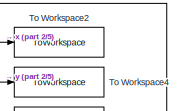
[diagram: root canvas - part 1/5, top center region]
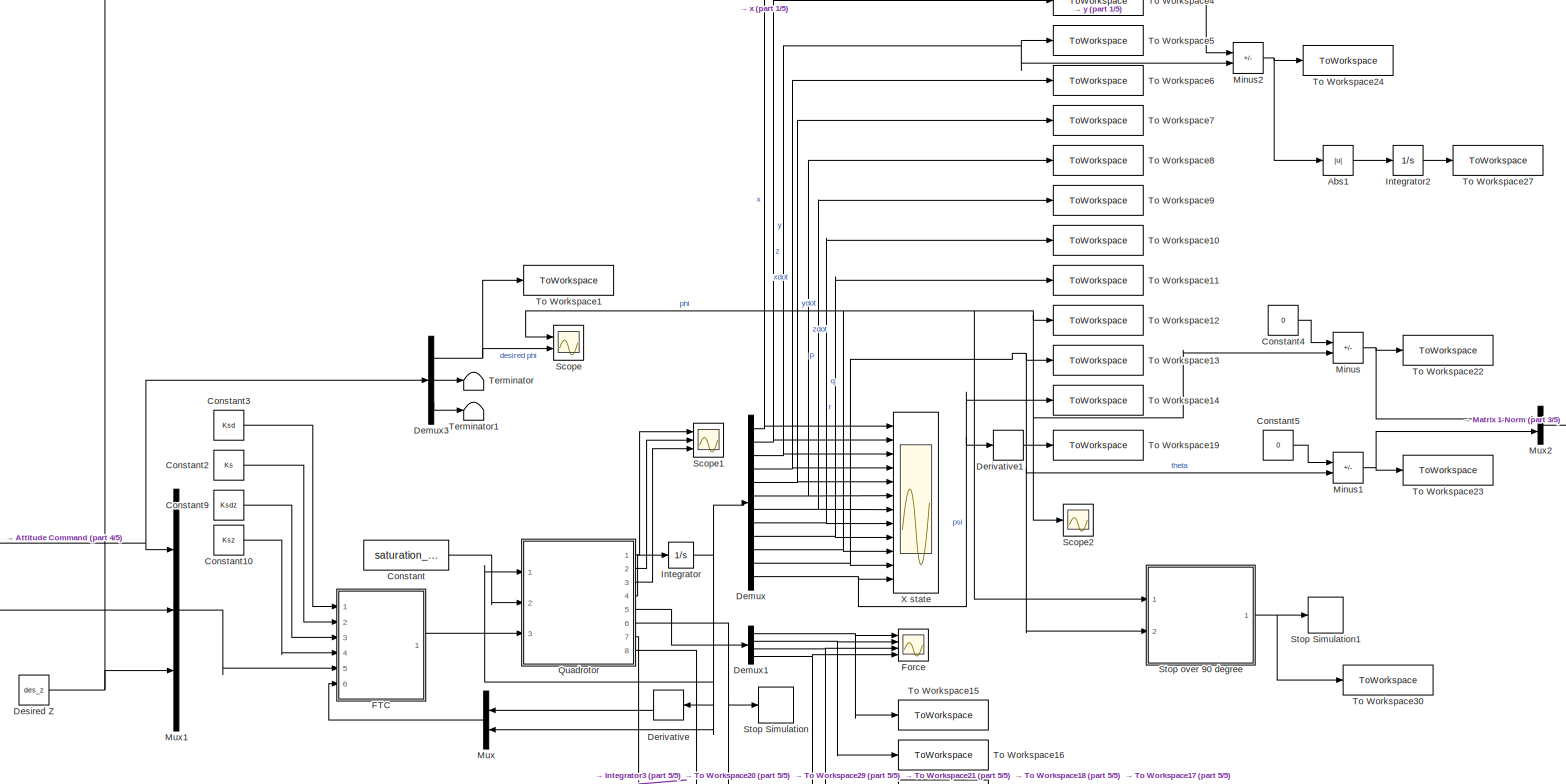
[diagram: root canvas - part 2/5, central region]
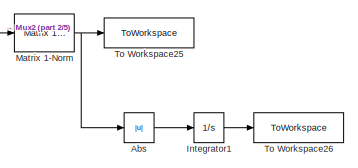
[diagram: root canvas - part 3/5, middle right region]
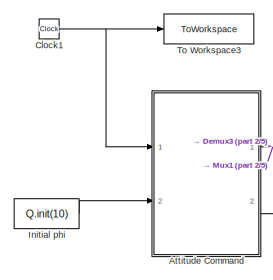
[diagram: root canvas - part 4/5, middle left region]
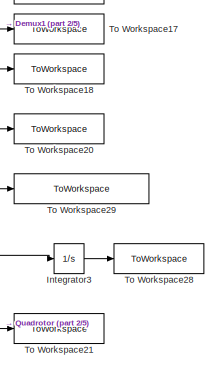
[diagram: root canvas - part 5/5, bottom center region]
MODEL slx_33594d75d6a8
KIND model
CONFIG AbsTol = auto
CONFIG EnableMultiTasking = off
CONFIG FixedStep = sampleRate
CONFIG MaxStep = auto
CONFIG MinStep = auto
CONFIG RelTol = 1e-3
CONFIG SampleTimeConstraint = Unconstrained
CONFIG SolverName = ode4
CONFIG StartTime = 0.0
CONFIG StopTime = tsim
BLOCK [Abs] Abs
  SaturateOnIntegerOverflow = off
BLOCK [Abs] Abs1
  SaturateOnIntegerOverflow = off
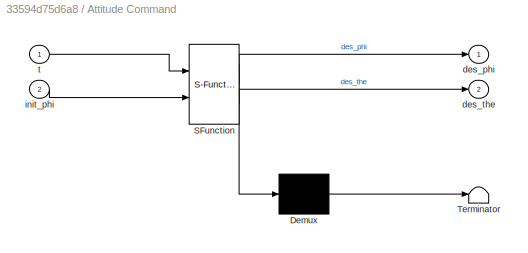
BLOCK [SubSystem] Attitude Command
  ErrorFcn = Stateflow.Translate.translate
  PermitHierarchicalResolution = ExplicitOnly
  Ports = [2, 2]
  RequestExecContextInheritance = off
  SFBlockType = MATLAB Function
  TreatAsAtomicUnit = on
BLOCK [Demux] Attitude Command/ Demux 
  Outputs = 1
  Ports = [1, 1]
BLOCK [S-Function] Attitude Command/ SFunction 
  EnableBusSupport = on
  FunctionName = sf_sfun
  PortCounts = [2 3]
  Ports = [2, 3]
  SFcnIsStateOwnerBlock = off
  SFunctionDeploymentMode = off
  Tag = Stateflow S-Function 4
BLOCK [Terminator] Attitude Command/ Terminator 
BLOCK [Outport] Attitude Command/des_phi
BLOCK [Outport] Attitude Command/des_the
  Port = 2
BLOCK [Inport] Attitude Command/init_phi
  Port = 2
BLOCK [Inport] Attitude Command/t
BLOCK [Clock] Clock1
BLOCK [Constant] Constant
  Value = saturation_on
BLOCK [Constant] Constant10
  Value = Ksz
BLOCK [Constant] Constant2
  Value = Ks
BLOCK [Constant] Constant3
  Value = Ksd
BLOCK [Constant] Constant4
  Value = 0
BLOCK [Constant] Constant5
  Value = 0
BLOCK [Constant] Constant9
  Value = Ksdz
BLOCK [Demux] Demux
  NameLocation = left
  Outputs = 12
  Ports = [1, 12]
BLOCK [Demux] Demux1
  Ports = [1, 4]
BLOCK [Demux] Demux3
  Outputs = 3
  Ports = [1, 3]
BLOCK [Derivative] Derivative
BLOCK [Derivative] Derivative1
BLOCK [Constant] Desired Z
  Value = des_z
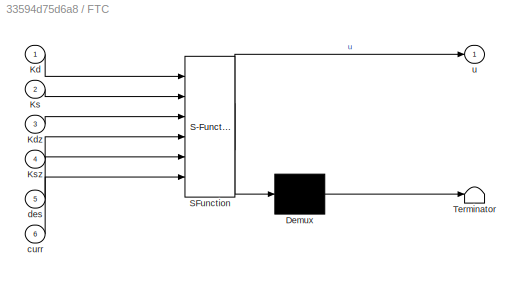
BLOCK [SubSystem] FTC
  ErrorFcn = Stateflow.Translate.translate
  PermitHierarchicalResolution = ExplicitOnly
  Ports = [6, 1]
  RequestExecContextInheritance = off
  SFBlockType = MATLAB Function
  TreatAsAtomicUnit = on
BLOCK [Demux] FTC/ Demux 
  Outputs = 1
  Ports = [1, 1]
BLOCK [S-Function] FTC/ SFunction 
  EnableBusSupport = on
  FunctionName = sf_sfun
  PortCounts = [6 2]
  Ports = [6, 2]
  SFcnIsStateOwnerBlock = off
  SFunctionDeploymentMode = off
  Tag = Stateflow S-Function 1
BLOCK [Terminator] FTC/ Terminator 
BLOCK [Inport] FTC/Kd
BLOCK [Inport] FTC/Kdz
  Port = 3
BLOCK [Inport] FTC/Ks
  Port = 2
BLOCK [Inport] FTC/Ksz
  Port = 4
BLOCK [Inport] FTC/curr
  Port = 6
BLOCK [Inport] FTC/des
  Port = 5
BLOCK [Outport] FTC/u
BLOCK [Scope] Force
  Floating = off
  NumInputPorts = 4
  Ports = [4]
  ScopeSpecificationString = Simulink.scopes.TimeScopeBlockCfg('CurrentConfiguration', extmgr.ConfigurationSet(extmgr.Configuration('Core','General UI',true),extmgr.Configuration('Core','Source UI',true),extmgr.Configuration('Sources','WiredSimulink',true,'DataLoggingVariableName','Force','DataLogging',true,'DataLoggingSaveFormat','Structure'),extmgr.Configuration('Visuals','Time Domain',true,'SerializedDisplays',{struct('Min...<+3470ch>
BLOCK [Constant] Initial phi
  Value = Q.init(10)
BLOCK [Integrator] Integrator
  InitialCondition = Q.init
  Ports = [1, 1]
BLOCK [Integrator] Integrator1
  Ports = [1, 1]
BLOCK [Integrator] Integrator2
  Ports = [1, 1]
BLOCK [Integrator] Integrator3
  Ports = [1, 1]
BLOCK [Reference] Matrix 1-Norm  REF=dspmtrx3/Matrix 
1-Norm
  Ports = [1, 1]
  SourceBlock = dspmtrx3/Matrix \n1-Norm
  SourceProductBaseCode = DS
  SourceType = Matrix 1-Norm
BLOCK [Sum] Minus
  IconShape = rectangular
  Inputs = +-
  Ports = [2, 1]
BLOCK [Sum] Minus1
  IconShape = rectangular
  Inputs = +-
  Ports = [2, 1]
BLOCK [Sum] Minus2
  IconShape = rectangular
  Inputs = +-
  Ports = [2, 1]
BLOCK [Mux] Mux
  DisplayOption = bar
  Inputs = 2
  Ports = [2, 1]
BLOCK [Mux] Mux1
  DisplayOption = bar
  Inputs = 3
  Ports = [3, 1]
BLOCK [Mux] Mux2
  DisplayOption = bar
  Inputs = 2
  Ports = [2, 1]
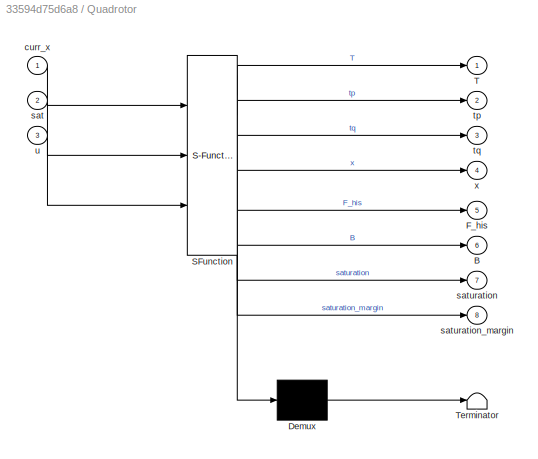
BLOCK [SubSystem] Quadrotor
  ErrorFcn = Stateflow.Translate.translate
  PermitHierarchicalResolution = ExplicitOnly
  Ports = [3, 8]
  RequestExecContextInheritance = off
  SFBlockType = MATLAB Function
  TreatAsAtomicUnit = on
BLOCK [Demux] Quadrotor/ Demux 
  Outputs = 1
  Ports = [1, 1]
BLOCK [S-Function] Quadrotor/ SFunction 
  EnableBusSupport = on
  FunctionName = sf_sfun
  PortCounts = [3 9]
  Ports = [3, 9]
  SFcnIsStateOwnerBlock = off
  SFunctionDeploymentMode = off
  Tag = Stateflow S-Function 2
BLOCK [Terminator] Quadrotor/ Terminator 
BLOCK [Outport] Quadrotor/B
  Port = 6
BLOCK [Outport] Quadrotor/F_his
  Port = 5
BLOCK [Outport] Quadrotor/T
BLOCK [Inport] Quadrotor/curr_x
BLOCK [Inport] Quadrotor/sat
  Port = 2
BLOCK [Outport] Quadrotor/saturation
  Port = 7
BLOCK [Outport] Quadrotor/saturation_margin
  Port = 8
BLOCK [Outport] Quadrotor/tp
  Port = 2
BLOCK [Outport] Quadrotor/tq
  Port = 3
BLOCK [Inport] Quadrotor/u
  Port = 3
BLOCK [Outport] Quadrotor/x
  Port = 4
BLOCK [Scope] Scope
  Floating = off
  NumInputPorts = 2
  Ports = [2]
  ScopeSpecificationString = Simulink.scopes.TimeScopeBlockCfg('CurrentConfiguration', extmgr.ConfigurationSet(extmgr.Configuration('Core','General UI',true),extmgr.Configuration('Core','Source UI',true),extmgr.Configuration('Sources','WiredSimulink',true,'DataLoggingVariableName','ScopeData1'),extmgr.Configuration('Visuals','Time Domain',true,'SerializedDisplays',{struct('MinYLimReal','0.57375','MaxYLimReal','0.61612','YLabe...<+1512ch>
BLOCK [Scope] Scope1
  Floating = off
  NumInputPorts = 3
  Ports = [3]
  ScopeSpecificationString = Simulink.scopes.TimeScopeBlockCfg('CurrentConfiguration', extmgr.ConfigurationSet(extmgr.Configuration('Core','General UI',true),extmgr.Configuration('Core','Source UI',true),extmgr.Configuration('Sources','WiredSimulink',true,'DataLoggingVariableName','ScopeData1'),extmgr.Configuration('Visuals','Time Domain',true,'SerializedDisplays',{struct('MinYLimReal','-4.73913','MaxYLimReal','42.44797','YLa...<+1780ch>
BLOCK [Scope] Scope2
  Floating = off
  NumInputPorts = 1
  Ports = [1]
  ScopeSpecificationString = Simulink.scopes.TimeScopeBlockCfg('CurrentConfiguration', extmgr.ConfigurationSet(extmgr.Configuration('Core','General UI',true),extmgr.Configuration('Core','Source UI',true),extmgr.Configuration('Sources','WiredSimulink',true,'DataLoggingVariableName','ScopeData1'),extmgr.Configuration('Visuals','Time Domain',true,'SerializedDisplays',{struct('MinYLimReal','-0.24385','MaxYLimReal','1.19065','YLab...<+1362ch>
BLOCK [Stop] Stop Simulation
BLOCK [Stop] Stop Simulation1
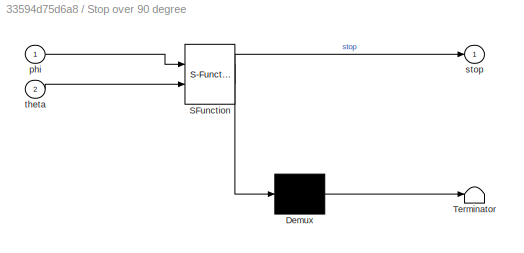
BLOCK [SubSystem] Stop over 90 degree
  ErrorFcn = Stateflow.Translate.translate
  PermitHierarchicalResolution = ExplicitOnly
  Ports = [2, 1]
  RequestExecContextInheritance = off
  SFBlockType = MATLAB Function
  TreatAsAtomicUnit = on
BLOCK [Demux] Stop over 90 degree/ Demux 
  Outputs = 1
  Ports = [1, 1]
BLOCK [S-Function] Stop over 90 degree/ SFunction 
  EnableBusSupport = on
  FunctionName = sf_sfun
  PortCounts = [2 2]
  Ports = [2, 2]
  SFcnIsStateOwnerBlock = off
  SFunctionDeploymentMode = off
  Tag = Stateflow S-Function 3
BLOCK [Terminator] Stop over 90 degree/ Terminator 
BLOCK [Inport] Stop over 90 degree/phi
BLOCK [Outport] Stop over 90 degree/stop
BLOCK [Inport] Stop over 90 degree/theta
  Port = 2
BLOCK [Terminator] Terminator
BLOCK [Terminator] Terminator1
BLOCK [ToWorkspace] To Workspace1
  FixptAsFi = on
  MaxDataPoints = inf
  Ports = [1]
  SampleTime = -1
  Save2DSignal = 2-D array (concatenate along first dimension)
  VariableName = phid
BLOCK [ToWorkspace] To Workspace10
  FixptAsFi = on
  MaxDataPoints = inf
  Ports = [1]
  SampleTime = -1
  Save2DSignal = 2-D array (concatenate along first dimension)
  VariableName = q
BLOCK [ToWorkspace] To Workspace11
  FixptAsFi = on
  MaxDataPoints = inf
  Ports = [1]
  SampleTime = -1
  Save2DSignal = 2-D array (concatenate along first dimension)
  VariableName = r
BLOCK [ToWorkspace] To Workspace12
  FixptAsFi = on
  MaxDataPoints = inf
  Ports = [1]
  SampleTime = -1
  Save2DSignal = 2-D array (concatenate along first dimension)
  VariableName = phi
BLOCK [ToWorkspace] To Workspace13
  FixptAsFi = on
  MaxDataPoints = inf
  Ports = [1]
  SampleTime = -1
  Save2DSignal = 2-D array (concatenate along first dimension)
  VariableName = theta
BLOCK [ToWorkspace] To Workspace14
  FixptAsFi = on
  MaxDataPoints = inf
  Ports = [1]
  SampleTime = -1
  Save2DSignal = 2-D array (concatenate along first dimension)
  VariableName = psi
BLOCK [ToWorkspace] To Workspace15
  FixptAsFi = on
  MaxDataPoints = inf
  Ports = [1]
  SampleTime = -1
  Save2DSignal = 2-D array (concatenate along first dimension)
  VariableName = F1
BLOCK [ToWorkspace] To Workspace16
  FixptAsFi = on
  MaxDataPoints = inf
  Ports = [1]
  SampleTime = -1
  Save2DSignal = 2-D array (concatenate along first dimension)
  VariableName = F2
BLOCK [ToWorkspace] To Workspace17
  FixptAsFi = on
  MaxDataPoints = inf
  Ports = [1]
  SampleTime = -1
  Save2DSignal = 2-D array (concatenate along first dimension)
  VariableName = F3
BLOCK [ToWorkspace] To Workspace18
  FixptAsFi = on
  MaxDataPoints = inf
  Ports = [1]
  SampleTime = -1
  Save2DSignal = 2-D array (concatenate along first dimension)
  VariableName = F4
BLOCK [ToWorkspace] To Workspace19
  FixptAsFi = on
  MaxDataPoints = inf
  Ports = [1]
  SampleTime = -1
  Save2DSignal = 2-D array (concatenate along first dimension)
  VariableName = psidot
BLOCK [ToWorkspace] To Workspace2
  FixptAsFi = on
  MaxDataPoints = inf
  Ports = [1]
  SampleTime = -1
  Save2DSignal = 2-D array (concatenate along first dimension)
  VariableName = x
BLOCK [ToWorkspace] To Workspace20
  FixptAsFi = on
  MaxDataPoints = inf
  Ports = [1]
  SampleTime = -1
  Save2DSignal = 2-D array (concatenate along first dimension)
  VariableName = saturation_PD
BLOCK [ToWorkspace] To Workspace21
  FixptAsFi = on
  MaxDataPoints = inf
  Ports = [1]
  SampleTime = -1
  Save2DSignal = 2-D array (concatenate along first dimension)
  VariableName = stop
BLOCK [ToWorkspace] To Workspace22
  FixptAsFi = on
  MaxDataPoints = inf
  Ports = [1]
  SampleTime = -1
  Save2DSignal = 2-D array (concatenate along first dimension)
  VariableName = err_phi_PD
BLOCK [ToWorkspace] To Workspace23
  FixptAsFi = on
  MaxDataPoints = inf
  Ports = [1]
  SampleTime = -1
  Save2DSignal = 2-D array (concatenate along first dimension)
  VariableName = err_theta_PD
BLOCK [ToWorkspace] To Workspace24
  FixptAsFi = on
  MaxDataPoints = inf
  Ports = [1]
  SampleTime = -1
  Save2DSignal = 2-D array (concatenate along first dimension)
  VariableName = err_z_PD
BLOCK [ToWorkspace] To Workspace25
  FixptAsFi = on
  MaxDataPoints = inf
  Ports = [1]
  SampleTime = -1
  Save2DSignal = 2-D array (concatenate along first dimension)
  VariableName = err_norm_PD
BLOCK [ToWorkspace] To Workspace26
  FixptAsFi = on
  MaxDataPoints = inf
  Ports = [1]
  SampleTime = -1
  Save2DSignal = 2-D array (concatenate along first dimension)
  VariableName = err_norm_PD_int_sim
BLOCK [ToWorkspace] To Workspace27
  FixptAsFi = on
  MaxDataPoints = inf
  Ports = [1]
  SampleTime = -1
  Save2DSignal = 2-D array (concatenate along first dimension)
  VariableName = err_z_PD_int_sim
BLOCK [ToWorkspace] To Workspace28
  FixptAsFi = on
  MaxDataPoints = inf
  Ports = [1]
  SampleTime = -1
  Save2DSignal = 2-D array (concatenate along first dimension)
  VariableName = saturation_PD_int_sim
BLOCK [ToWorkspace] To Workspace29
  FixptAsFi = on
  MaxDataPoints = inf
  Ports = [1]
  SampleTime = -1
  Save2DSignal = 2-D array (concatenate along first dimension)
  VariableName = saturation_margin_PD
BLOCK [ToWorkspace] To Workspace3
  FixptAsFi = on
  MaxDataPoints = inf
  Ports = [1]
  SampleTime = -1
  Save2DSignal = 2-D array (concatenate along first dimension)
  VariableName = time_sim
BLOCK [ToWorkspace] To Workspace30
  FixptAsFi = on
  MaxDataPoints = inf
  Ports = [1]
  SampleTime = -1
  Save2DSignal = 2-D array (concatenate along first dimension)
  VariableName = stop2
BLOCK [ToWorkspace] To Workspace4
  FixptAsFi = on
  MaxDataPoints = inf
  Ports = [1]
  SampleTime = -1
  Save2DSignal = 2-D array (concatenate along first dimension)
  VariableName = y
BLOCK [ToWorkspace] To Workspace5
  FixptAsFi = on
  MaxDataPoints = inf
  Ports = [1]
  SampleTime = -1
  Save2DSignal = 2-D array (concatenate along first dimension)
  VariableName = z
BLOCK [ToWorkspace] To Workspace6
  FixptAsFi = on
  MaxDataPoints = inf
  Ports = [1]
  SampleTime = -1
  Save2DSignal = 2-D array (concatenate along first dimension)
  VariableName = xdot
BLOCK [ToWorkspace] To Workspace7
  FixptAsFi = on
  MaxDataPoints = inf
  Ports = [1]
  SampleTime = -1
  Save2DSignal = 2-D array (concatenate along first dimension)
  VariableName = ydot
BLOCK [ToWorkspace] To Workspace8
  FixptAsFi = on
  MaxDataPoints = inf
  Ports = [1]
  SampleTime = -1
  Save2DSignal = 2-D array (concatenate along first dimension)
  VariableName = zdot
BLOCK [ToWorkspace] To Workspace9
  FixptAsFi = on
  MaxDataPoints = inf
  Ports = [1]
  SampleTime = -1
  Save2DSignal = 2-D array (concatenate along first dimension)
  VariableName = p
BLOCK [Scope] X state
  Floating = off
  NumInputPorts = 12
  Ports = [12]
  ScopeSpecificationString = Simulink.scopes.TimeScopeBlockCfg('CurrentConfiguration', extmgr.ConfigurationSet(extmgr.Configuration('Core','General UI',true),extmgr.Configuration('Core','Source UI',true),extmgr.Configuration('Sources','WiredSimulink',true,'DataLogging',true,'DataLoggingVariableName','X_out','DataLoggingSaveFormat','Structure'),extmgr.Configuration('Visuals','Time Domain',true,'SerializedDisplays',{struct('Min...<+9063ch>
LINE Abs1:1 -> Integrator2:1
LINE Abs:1 -> Integrator1:1
NET Attitude Command:1 -> Demux3:1, Mux1:1
LINE Attitude Command:2 -> Mux1:2
NET Clock1:1 -> Attitude Command:1, To Workspace3:1
LINE Constant10:1 -> FTC:4
LINE Constant2:1 -> FTC:2
LINE Constant3:1 -> FTC:1
LINE Constant4:1 -> Minus:1
LINE Constant5:1 -> Minus1:1
LINE Constant9:1 -> FTC:3
LINE Constant:1 -> Quadrotor:2
NET Demux1:1 -> Force:1, To Workspace15:1
NET Demux1:2 -> Force:2, To Workspace16:1
NET Demux1:3 -> Force:3, To Workspace17:1
NET Demux1:4 -> Force:4, To Workspace18:1
NET Demux3:1 -> Scope:2, To Workspace1:1
LINE Demux3:2 -> Terminator:1
LINE Demux3:3 -> Terminator1:1
NET Demux:1 -> To Workspace2:1, X state:1
NET Demux:10 -> Minus:2, Scope2:1, Scope:1, Stop over 90 degree:1, To Workspace12:1, X state:10
NET Demux:11 -> Minus1:2, Stop over 90 degree:2, To Workspace13:1, X state:11
NET Demux:12 -> Derivative1:1, To Workspace14:1, X state:12
NET Demux:2 -> To Workspace4:1, X state:2
NET Demux:3 -> Minus2:2, To Workspace5:1, X state:3
NET Demux:4 -> To Workspace6:1, X state:4
NET Demux:5 -> To Workspace7:1, X state:5
NET Demux:6 -> To Workspace8:1, X state:6
NET Demux:7 -> To Workspace9:1, X state:7
NET Demux:8 -> To Workspace10:1, X state:8
NET Demux:9 -> To Workspace11:1, X state:9
LINE Derivative1:1 -> To Workspace19:1
LINE Derivative:1 -> Mux:1
NET Desired Z:1 -> Minus2:1, Mux1:3
LINE FTC:1 -> Quadrotor:3
LINE Initial phi:1 -> Attitude Command:2
LINE Integrator1:1 -> To Workspace26:1
LINE Integrator2:1 -> To Workspace27:1
LINE Integrator3:1 -> To Workspace28:1
NET Integrator:1 -> Demux:1, Derivative:1, Mux:2, Quadrotor:1
NET Matrix 1-Norm:1 -> Abs:1, To Workspace25:1
NET Minus1:1 -> Mux2:2, To Workspace23:1
NET Minus2:1 -> Abs1:1, To Workspace24:1
NET Minus:1 -> Mux2:1, To Workspace22:1
LINE Mux1:1 -> FTC:5
LINE Mux2:1 -> Matrix 1-Norm:1
LINE Mux:1 -> FTC:6
LINE Quadrotor:1 -> Scope1:1
LINE Quadrotor:2 -> Scope1:2
LINE Quadrotor:3 -> Scope1:3
LINE Quadrotor:4 -> Integrator:1
LINE Quadrotor:5 -> Demux1:1
NET Quadrotor:6 -> Stop Simulation:1, To Workspace21:1
NET Quadrotor:7 -> Integrator3:1, To Workspace20:1
LINE Quadrotor:8 -> To Workspace29:1
NET Stop over 90 degree:1 -> Stop Simulation1:1, To Workspace30:1
note: NET lines group one-source signal fan-out (src -> all destinations, sorted); 1:1 wires keep LINE
CHART FTC states=1 transitions=1
  STATE_LABEL 'eML_blk_kernel()'
  STATE_LABEL 'SCRIPT:\nfunction u   = smc(Kd,Ks,Kdz,Ksz,des,curr)\n\nm = 1.282; g = 9.81;\nIx = 4.856*10^-3; Iy = Ix; Iz = 8.801*10^-3;\nb = 0.0066;\nkr = 0.02; %drag coefficient\nkt = 0.5;\n% kt = 0.25;\nl = 0.1;\n\n% current state\nN = 0;\nxdot   = curr(N+1); ydot   = curr(N+2); zdot   = curr(N+3);\nx2dot  = curr(N+4); y2dot  = curr(N+5); z2dot  = curr(N+6);\npdot   = curr(N+7); qdot   = curr(N+8); rdot   = curr(N+9);\nphido...<+2028ch>'
CHART Quadrotor states=1 transitions=1
  STATE_LABEL 'eML_blk_kernel()'
  STATE_LABEL 'SCRIPT:\nfunction [T,tp,tq,x,F_his,B,saturation,saturation_margin]  = system(curr_x,sat,u)\n% x = {xyz xyzvel pqr phi theta psi}\nx = zeros(12,1);\n% Properties\nm = 1.282; g = 9.81;\nIx = 4.856*10^-3; Iz = 8.801*10^-3;\nb = 0.0066;\nkr = 0.02; %drag coefficient\nkt = 0.5;\nl = 0.1;\n\nu_temp = zeros(3,1);\nu_temp = u;\nu = u_temp;\n\nT = u(1); tp = u(2); tq = u(3);% tr = u(4);\ntr = b*(T-2*tp/l);\nA = [1 1 1; 0 l ...<+2709ch>'
CHART Stop over 90 degree states=1 transitions=1
  STATE_LABEL 'eML_blk_kernel()'
  STATE_LABEL 'SCRIPT:\nfunction stop = fcn(phi, theta)\n\nstop = 0;\nmax_attitude = deg2rad(90);\n\nif abs(phi) >= max_attitude || abs(theta) >= max_attitude\n    stop = 1;\nend\n'
CHART Attitude Command states=1 transitions=1
  STATE_LABEL 'eML_blk_kernel()'
  STATE_LABEL "SCRIPT:\nfunction [des_phi,des_the]  = fcn(t,init_phi)\n\ndes_phi = [0, 0, 0]';\ndes_the = [0, 0, 0]';\n"
CHART  states=0 transitions=0
CHART  states=0 transitions=0
CHART  states=0 transitions=0
CHART  states=0 transitions=0
